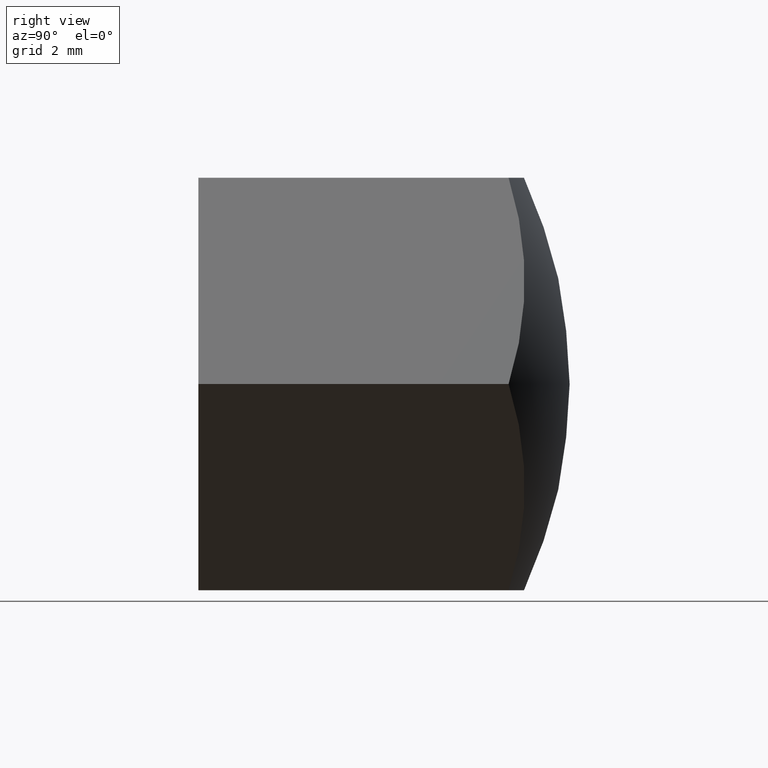
[diagram: clean part render]
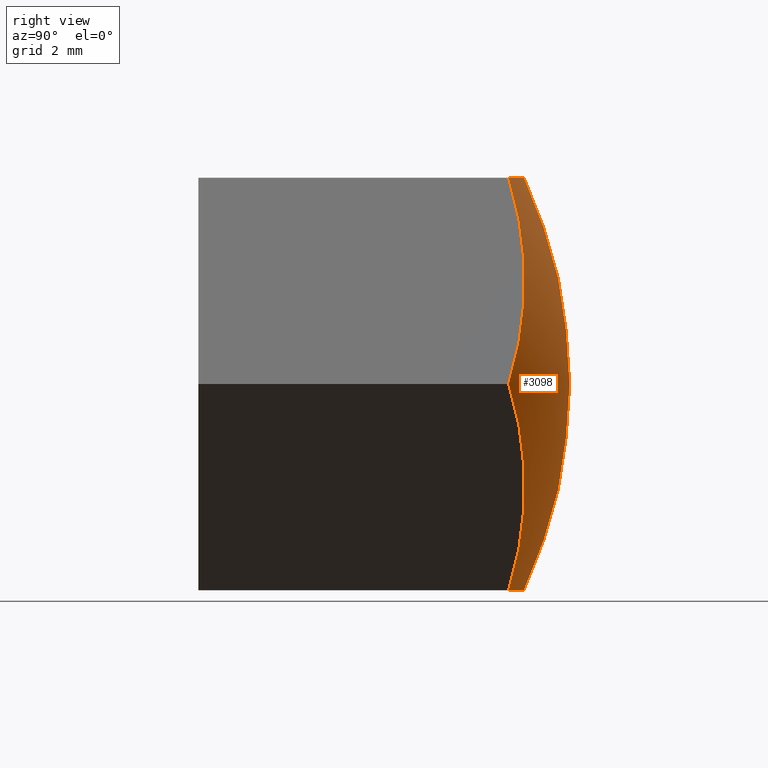
[diagram: same view with one face highlighted and labeled with its STEP entity id]
A machine part, right view. The second image highlights one B-rep face of the part: STEP entity #3098.
In plain terms, the highlighted spherical surface has radius 12 mm.
Its self-contained STEP definition (entity closure, byte-faithful):
#96 = DIRECTION ( 'NONE',  ( 1.502314598737158045E-16, -0.000000000000000000, 1.000000000000000000 ) ) ;
#165 = AXIS2_PLACEMENT_3D ( 'NONE', #12199, #13339, #2248 ) ;
#851 = AXIS2_PLACEMENT_3D ( 'NONE', #6484, #871, #1056 ) ;
#871 = DIRECTION ( 'NONE',  ( -0.8660254037844387076, 0.000000000000000000, -0.5000000000000002220 ) ) ;
#952 = AXIS2_PLACEMENT_3D ( 'NONE', #11639, #13854, #3809 ) ;
#978 = CIRCLE ( 'NONE', #13350, 10.90871211463571555 ) ;
#1056 = DIRECTION ( 'NONE',  ( 0.5000000000000001110, 5.327231650678100976E-15, -0.8660254037844384856 ) ) ;
#1771 = CIRCLE ( 'NONE', #851, 10.90871211463571910 ) ;
#2137 = DIRECTION ( 'NONE',  ( 1.000000000000000000, 0.000000000000000000, 0.000000000000000000 ) ) ;
#2244 = CARTESIAN_POINT ( 'NONE',  ( 0.000000000000000000, -3.000000000000000888, 0.000000000000000000 ) ) ;
#2248 = DIRECTION ( 'NONE',  ( -0.5000000000000001110, 1.788995703585929420E-15, -0.8660254037844384856 ) ) ;
#2365 = ORIENTED_EDGE ( 'NONE', *, *, #11742, .F. ) ;
#2371 = CIRCLE ( 'NONE', #5110, 10.90871211463571377 ) ;
#2752 = VERTEX_POINT ( 'NONE', #10694 ) ;
#2817 = ORIENTED_EDGE ( 'NONE', *, *, #3773, .F. ) ;
#3098 = ADVANCED_FACE ( 'NONE', ( #8058 ), #5118, .T. ) ;
#3773 = EDGE_CURVE ( 'NONE', #10283, #2752, #7697, .T. ) ;
#3809 = DIRECTION ( 'NONE',  ( 0.5000000000000004441, 7.116227354264032763E-15, 0.8660254037844384856 ) ) ;
#3989 = DIRECTION ( 'NONE',  ( -0.5000000000000001110, -1.788995703585930209E-15, 0.8660254037844385966 ) ) ;
#4132 = ORIENTED_EDGE ( 'NONE', *, *, #7106, .F. ) ;
#5077 = CARTESIAN_POINT ( 'NONE',  ( 5.773502691896258199, 7.519822558706331428, 2.168404344971009262E-15 ) ) ;
#5110 = AXIS2_PLACEMENT_3D ( 'NONE', #10469, #10620, #3989 ) ;
#5118 = SPHERICAL_SURFACE ( 'NONE', #5742, 12.00000000000000000 ) ;
#5742 = AXIS2_PLACEMENT_3D ( 'NONE', #2244, #13191, #2137 ) ;
#6029 = AXIS2_PLACEMENT_3D ( 'NONE', #11204, #7898, #14171 ) ;
#6484 = CARTESIAN_POINT ( 'NONE',  ( -4.330127018922192761, -3.000000000000000888, -2.500000000000000444 ) ) ;
#6509 = ORIENTED_EDGE ( 'NONE', *, *, #6838, .F. ) ;
#6838 = EDGE_CURVE ( 'NONE', #7758, #7221, #12496, .T. ) ;
#6844 = CIRCLE ( 'NONE', #952, 10.90871211463571555 ) ;
#7106 = EDGE_CURVE ( 'NONE', #7221, #10283, #1771, .T. ) ;
#7221 = VERTEX_POINT ( 'NONE', #8991 ) ;
#7584 = ORIENTED_EDGE ( 'NONE', *, *, #9366, .F. ) ;
#7697 = CIRCLE ( 'NONE', #6029, 10.90871211463571377 ) ;
#7758 = VERTEX_POINT ( 'NONE', #12544 ) ;
#7840 = ORIENTED_EDGE ( 'NONE', *, *, #9045, .F. ) ;
#7898 = DIRECTION ( 'NONE',  ( -0.000000000000000000, 0.000000000000000000, -1.000000000000000000 ) ) ;
#8058 = FACE_OUTER_BOUND ( 'NONE', #12335, .T. ) ;
#8991 = CARTESIAN_POINT ( 'NONE',  ( -5.773502691896258199, 7.519822558706331428, 4.336808689942018722E-16 ) ) ;
#9045 = EDGE_CURVE ( 'NONE', #9825, #11153, #2371, .T. ) ;
#9366 = EDGE_CURVE ( 'NONE', #11153, #7758, #978, .T. ) ;
#9825 = VERTEX_POINT ( 'NONE', #5077 ) ;
#10176 = CARTESIAN_POINT ( 'NONE',  ( 7.511572993685785296E-16, -3.000000000000000888, 4.999999999999996447 ) ) ;
#10283 = VERTEX_POINT ( 'NONE', #11440 ) ;
#10469 = CARTESIAN_POINT ( 'NONE',  ( 4.330127018922194537, -3.000000000000000888, 2.500000000000000888 ) ) ;
#10620 = DIRECTION ( 'NONE',  ( 0.8660254037844385966, -0.000000000000000000, 0.5000000000000001110 ) ) ;
#10694 = CARTESIAN_POINT ( 'NONE',  ( 2.886751345948126435, 7.519822558706331428, -5.000000000000001776 ) ) ;
#11153 = VERTEX_POINT ( 'NONE', #13949 ) ;
#11204 = CARTESIAN_POINT ( 'NONE',  ( 0.000000000000000000, -3.000000000000000888, -5.000000000000000888 ) ) ;
#11440 = CARTESIAN_POINT ( 'NONE',  ( -2.886751345948127767, 7.519822558706331428, -5.000000000000000888 ) ) ;
#11639 = CARTESIAN_POINT ( 'NONE',  ( 4.330127018922190096, -3.000000000000000888, -2.500000000000000444 ) ) ;
#11742 = EDGE_CURVE ( 'NONE', #2752, #9825, #6844, .T. ) ;
#12199 = CARTESIAN_POINT ( 'NONE',  ( -4.330127018922192761, -3.000000000000000888, 2.500000000000000444 ) ) ;
#12335 = EDGE_LOOP ( 'NONE', ( #2365, #2817, #4132, #6509, #7584, #7840 ) ) ;
#12496 = CIRCLE ( 'NONE', #165, 10.90871211463571910 ) ;
#12544 = CARTESIAN_POINT ( 'NONE',  ( -2.886751345948129988, 7.519822558706331428, 4.999999999999996447 ) ) ;
#13191 = DIRECTION ( 'NONE',  ( 0.000000000000000000, 0.000000000000000000, 1.000000000000000000 ) ) ;
#13339 = DIRECTION ( 'NONE',  ( -0.8660254037844387076, -0.000000000000000000, 0.5000000000000002220 ) ) ;
#13345 = DIRECTION ( 'NONE',  ( -1.000000000000000000, 0.000000000000000000, 1.590218403187493388E-16 ) ) ;
#13350 = AXIS2_PLACEMENT_3D ( 'NONE', #10176, #96, #13345 ) ;
#13854 = DIRECTION ( 'NONE',  ( 0.8660254037844384856, -0.000000000000000000, -0.5000000000000004441 ) ) ;
#13949 = CARTESIAN_POINT ( 'NONE',  ( 2.886751345948134873, 7.519822558706331428, 4.999999999999996447 ) ) ;
#14171 = DIRECTION ( 'NONE',  ( 1.000000000000000000, 1.788995703585930209E-15, 0.000000000000000000 ) ) ;